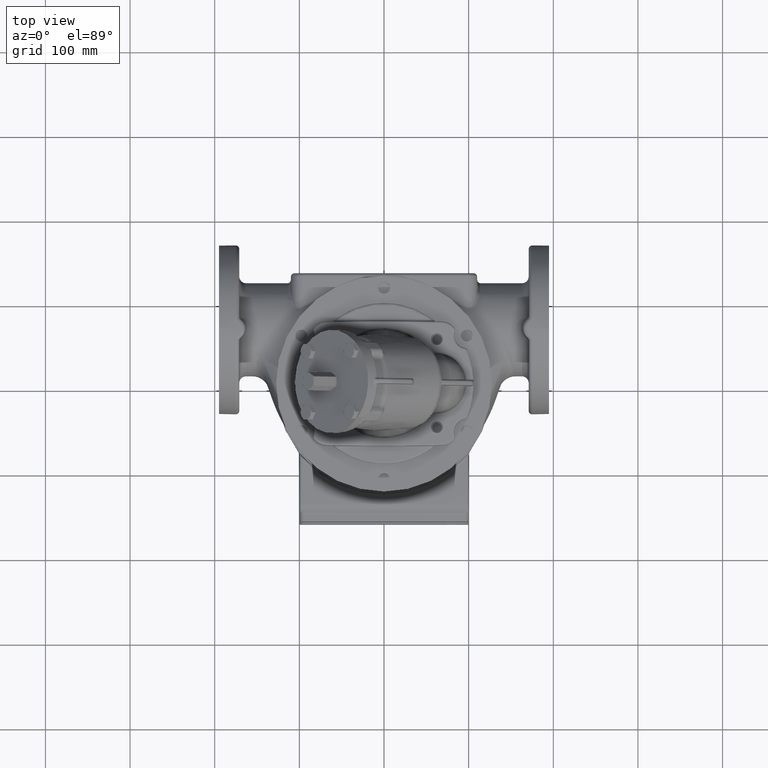
[diagram: clean part render]
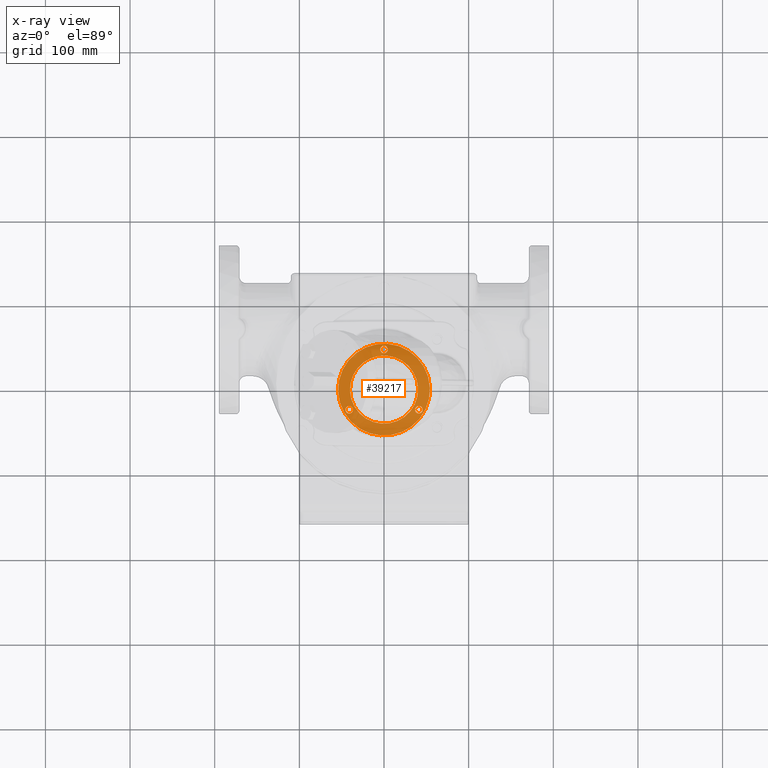
[diagram: x-ray — body ghosted, one internal face saturated and labeled with its STEP entity id]
A machine part, top view, then the same camera in x-ray: the body is ghosted and one INTERNAL B-rep face — a face not visible from any outside direction — is saturated and labeled: STEP entity #39217.
In plain terms, the highlighted planar face has unit normal (0, 0, 1).
Its self-contained STEP definition (entity closure, byte-faithful):
#11376=CARTESIAN_POINT('',(0.E0,0.E0,-2.554E2));
#11377=DIRECTION('',(0.E0,0.E0,-1.E0));
#11378=DIRECTION('',(-8.660254037844E-1,-5.E-1,0.E0));
#11379=AXIS2_PLACEMENT_3D('',#11376,#11377,#11378);
#11381=CARTESIAN_POINT('',(0.E0,0.E0,-2.554E2));
#11382=DIRECTION('',(0.E0,0.E0,-1.E0));
#11383=DIRECTION('',(8.660254037844E-1,5.E-1,0.E0));
#11384=AXIS2_PLACEMENT_3D('',#11381,#11382,#11383);
#11386=CARTESIAN_POINT('',(-4.113620667976E1,-2.375E1,-2.554E2));
#11387=DIRECTION('',(0.E0,0.E0,-1.E0));
#11388=DIRECTION('',(5.E-1,-8.660254037844E-1,0.E0));
#11389=AXIS2_PLACEMENT_3D('',#11386,#11387,#11388);
#11391=CARTESIAN_POINT('',(-4.113620667976E1,-2.375E1,-2.554E2));
#11392=DIRECTION('',(0.E0,0.E0,-1.E0));
#11393=DIRECTION('',(-5.E-1,8.660254037844E-1,0.E0));
#11394=AXIS2_PLACEMENT_3D('',#11391,#11392,#11393);
#11396=CARTESIAN_POINT('',(4.113620667976E1,-2.375E1,-2.554E2));
#11397=DIRECTION('',(0.E0,0.E0,-1.E0));
#11398=DIRECTION('',(5.E-1,8.660254037844E-1,0.E0));
#11399=AXIS2_PLACEMENT_3D('',#11396,#11397,#11398);
#11401=CARTESIAN_POINT('',(4.113620667976E1,-2.375E1,-2.554E2));
#11402=DIRECTION('',(0.E0,0.E0,-1.E0));
#11403=DIRECTION('',(-5.E-1,-8.660254037844E-1,0.E0));
#11404=AXIS2_PLACEMENT_3D('',#11401,#11402,#11403);
#11406=CARTESIAN_POINT('',(3.075327901775E-14,4.75E1,-2.554E2));
#11407=DIRECTION('',(0.E0,0.E0,-1.E0));
#11408=DIRECTION('',(-1.E0,0.E0,0.E0));
#11409=AXIS2_PLACEMENT_3D('',#11406,#11407,#11408);
#11411=CARTESIAN_POINT('',(3.075327901775E-14,4.75E1,-2.554E2));
#11412=DIRECTION('',(0.E0,0.E0,-1.E0));
#11413=DIRECTION('',(1.E0,0.E0,0.E0));
#11414=AXIS2_PLACEMENT_3D('',#11411,#11412,#11413);
#11416=CARTESIAN_POINT('',(0.E0,0.E0,-2.554E2));
#11417=DIRECTION('',(0.E0,0.E0,1.E0));
#11418=DIRECTION('',(8.660254037844E-1,5.E-1,0.E0));
#11419=AXIS2_PLACEMENT_3D('',#11416,#11417,#11418);
#11421=CARTESIAN_POINT('',(0.E0,0.E0,-2.554E2));
#11422=DIRECTION('',(0.E0,0.E0,1.E0));
#11423=DIRECTION('',(-8.660254037844E-1,-5.E-1,0.E0));
#11424=AXIS2_PLACEMENT_3D('',#11421,#11422,#11423);
#15401=CARTESIAN_POINT('',(-3.888620667976E1,-2.764711431703E1,-2.554E2));
#15402=VERTEX_POINT('',#15401);
#15403=CARTESIAN_POINT('',(-4.338620667976E1,-1.985288568297E1,-2.554E2));
#15404=VERTEX_POINT('',#15403);
#15409=CARTESIAN_POINT('',(4.338620667976E1,-1.985288568297E1,-2.554E2));
#15410=VERTEX_POINT('',#15409);
#15411=CARTESIAN_POINT('',(3.888620667976E1,-2.764711431703E1,-2.554E2));
#15412=VERTEX_POINT('',#15411);
#15417=CARTESIAN_POINT('',(-4.5E0,4.75E1,-2.554E2));
#15418=VERTEX_POINT('',#15417);
#15419=CARTESIAN_POINT('',(4.5E0,4.75E1,-2.554E2));
#15420=VERTEX_POINT('',#15419);
#15421=CARTESIAN_POINT('',(3.490082377251E1,2.015E1,-2.554E2));
#15422=CARTESIAN_POINT('',(-3.490082377251E1,-2.015E1,-2.554E2));
#15423=VERTEX_POINT('',#15421);
#15424=VERTEX_POINT('',#15422);
#15441=CARTESIAN_POINT('',(-4.698187815531E1,-2.7125E1,-2.554E2));
#15442=CARTESIAN_POINT('',(4.698187815531E1,2.7125E1,-2.554E2));
#15443=VERTEX_POINT('',#15441);
#15444=VERTEX_POINT('',#15442);
#39183=CARTESIAN_POINT('',(0.E0,0.E0,-2.554E2));
#39184=DIRECTION('',(0.E0,0.E0,1.E0));
#39185=DIRECTION('',(8.660254037844E-1,5.E-1,0.E0));
#39186=AXIS2_PLACEMENT_3D('',#39183,#39184,#39185);
#39187=PLANE('',#39186);
#39189=ORIENTED_EDGE('',*,*,#39188,.T.);
#39191=ORIENTED_EDGE('',*,*,#39190,.T.);
#39192=EDGE_LOOP('',(#39189,#39191));
#39193=FACE_OUTER_BOUND('',#39192,.F.);
#39195=ORIENTED_EDGE('',*,*,#39194,.F.);
#39197=ORIENTED_EDGE('',*,*,#39196,.F.);
#39198=EDGE_LOOP('',(#39195,#39197));
#39199=FACE_BOUND('',#39198,.F.);
#39201=ORIENTED_EDGE('',*,*,#39200,.F.);
#39203=ORIENTED_EDGE('',*,*,#39202,.F.);
#39204=EDGE_LOOP('',(#39201,#39203));
#39205=FACE_BOUND('',#39204,.F.);
#39207=ORIENTED_EDGE('',*,*,#39206,.F.);
#39209=ORIENTED_EDGE('',*,*,#39208,.F.);
#39210=EDGE_LOOP('',(#39207,#39209));
#39211=FACE_BOUND('',#39210,.F.);
#39212=ORIENTED_EDGE('',*,*,#39173,.T.);
#39214=ORIENTED_EDGE('',*,*,#39213,.T.);
#39215=EDGE_LOOP('',(#39212,#39214));
#39216=FACE_BOUND('',#39215,.F.);
#39217=ADVANCED_FACE('',(#39193,#39199,#39205,#39211,#39216),#39187,.T.);
#11380=CIRCLE('',#11379,5.425E1);
#11385=CIRCLE('',#11384,5.425E1);
#11390=CIRCLE('',#11389,4.5E0);
#11395=CIRCLE('',#11394,4.5E0);
#11400=CIRCLE('',#11399,4.5E0);
#11405=CIRCLE('',#11404,4.5E0);
#11410=CIRCLE('',#11409,4.5E0);
#11415=CIRCLE('',#11414,4.5E0);
#11420=CIRCLE('',#11419,4.03E1);
#11425=CIRCLE('',#11424,4.03E1);
#39173=EDGE_CURVE('',#15423,#15424,#11420,.T.);
#39188=EDGE_CURVE('',#15443,#15444,#11380,.T.);
#39190=EDGE_CURVE('',#15444,#15443,#11385,.T.);
#39194=EDGE_CURVE('',#15402,#15404,#11390,.T.);
#39196=EDGE_CURVE('',#15404,#15402,#11395,.T.);
#39200=EDGE_CURVE('',#15410,#15412,#11400,.T.);
#39202=EDGE_CURVE('',#15412,#15410,#11405,.T.);
#39206=EDGE_CURVE('',#15418,#15420,#11410,.T.);
#39208=EDGE_CURVE('',#15420,#15418,#11415,.T.);
#39213=EDGE_CURVE('',#15424,#15423,#11425,.T.);